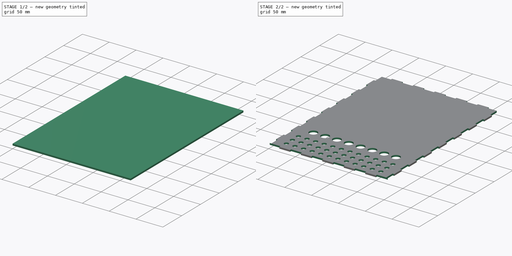
[diagram: build sequence overview — one tinted view per stage of 2, left to right]
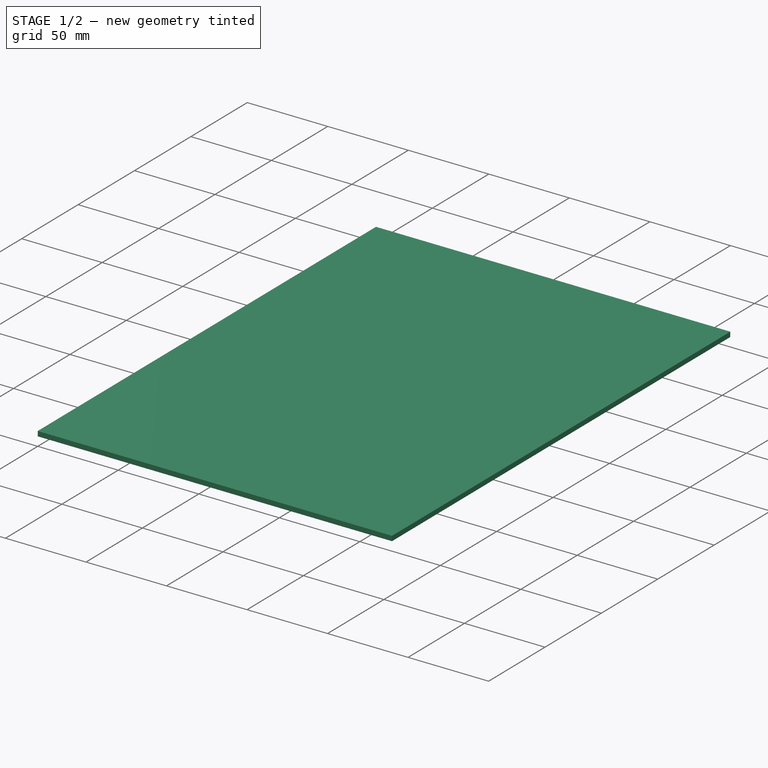
[diagram: stage 1 of 2 — iso view after this stage's code; geometry added in this stage tinted green]
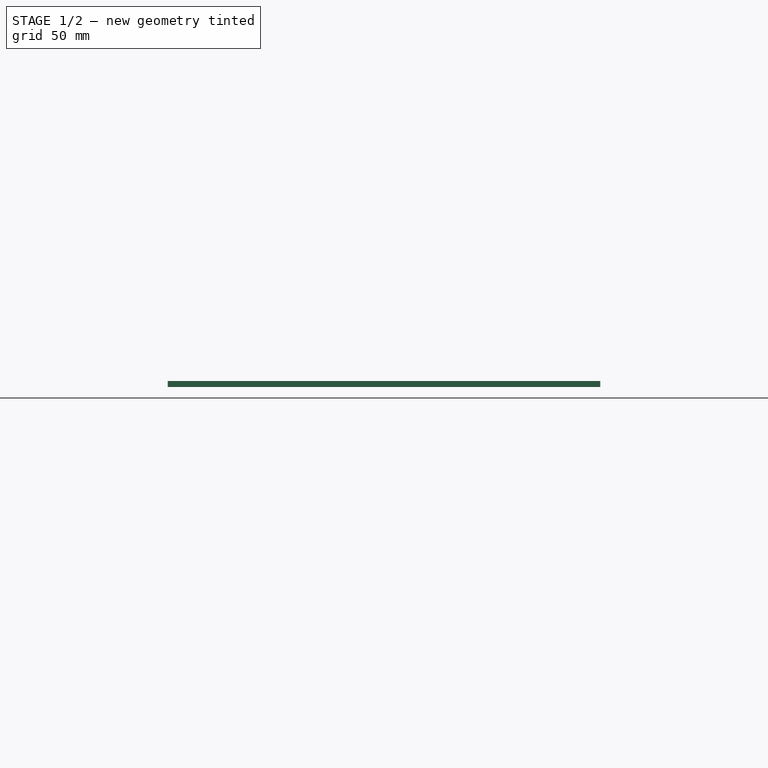
[diagram: stage 1 of 2 — front view after this stage's code; geometry added in this stage tinted green]
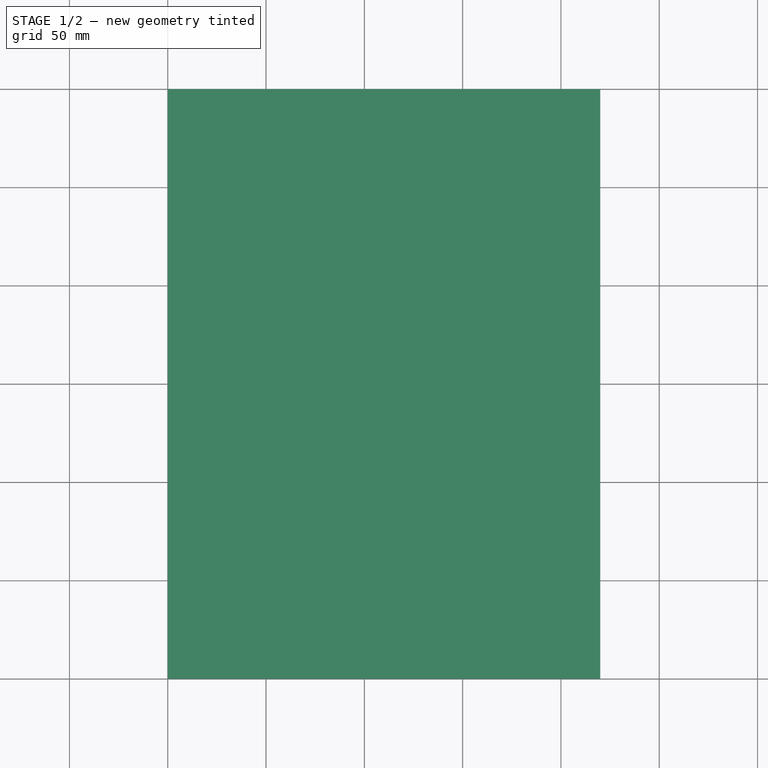
[diagram: stage 1 of 2 — top view after this stage's code; geometry added in this stage tinted green]
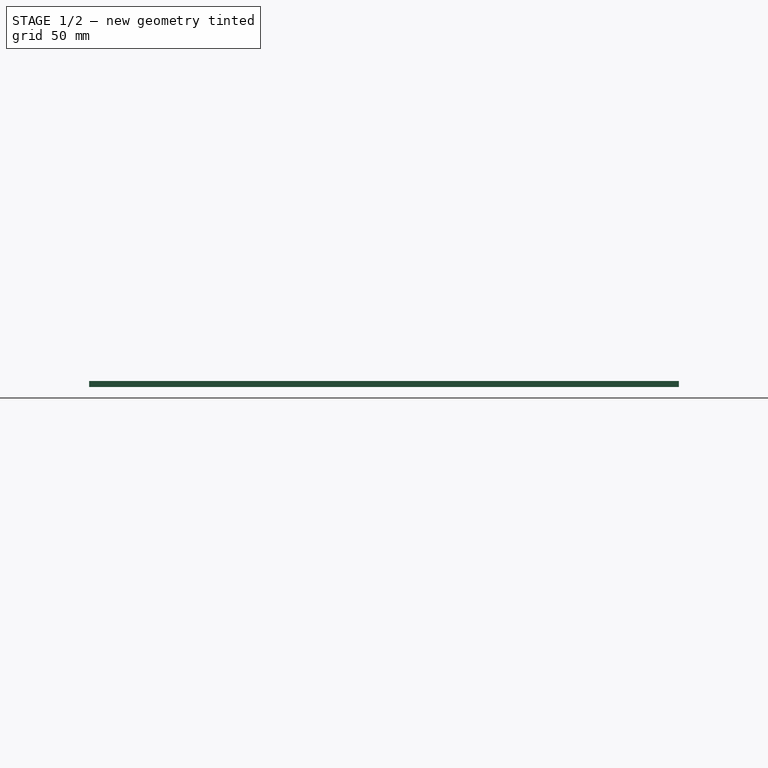
[diagram: stage 1 of 2 — right view after this stage's code; geometry added in this stage tinted green]
FCSTD DOCUMENT  (FreeCAD 0.19R24366 (Git))
Label: mdo-back
License: All rights reserved
LicenseURL: http://en.wikipedia.org/wiki/All_rights_reserved
objects: Sketcher::SketchObject×2, PartDesign::Pad×1, PartDesign::Pocket×1, PartDesign::Body×1, TechDraw::DrawSVGTemplate×1, TechDraw::DrawViewPart×1, TechDraw::DrawPage×1
note: 7 computed .brp shape members not serialized (recipe doc carries the construction recipe); baked Part::Feature solids carry a one-line shape summary decoded from their .brp

FEATURE [Sketcher::SketchObject] Sketch
  FullyConstrained = true
  MapMode = 5
  Support = -> [XY_Plane]
  sketch-geometry (4):
    g0: LineSegment StartX=0 StartY=0 StartZ=0 EndX=220 EndY=0 EndZ=0
    g1: LineSegment StartX=220 StartY=0 StartZ=0 EndX=220 EndY=300 EndZ=0
    g2: LineSegment StartX=220 StartY=300 StartZ=0 EndX=0 EndY=300 EndZ=0
    g3: LineSegment StartX=0 StartY=300 StartZ=0 EndX=0 EndY=0 EndZ=0
  constraints (11):
    c: Coincident(g0,g1)
    c: Coincident(g1,g2)
    c: Coincident(g2,g3)
    c: Coincident(g3,g0)
    c: Horizontal(g0)
    c: Horizontal(g2)
    c: Vertical(g1)
    c: Vertical(g3)
    c: Coincident(g0,g-1)
    c: DistanceY(g1,g1) = 300
    c: DistanceX(g0,g0) = 220
FEATURE [PartDesign::Pad] Pad
  Direction = (1,1,1)
  Length = 3
  Length2 = 100
  Profile = -> Sketch
  Type = 0
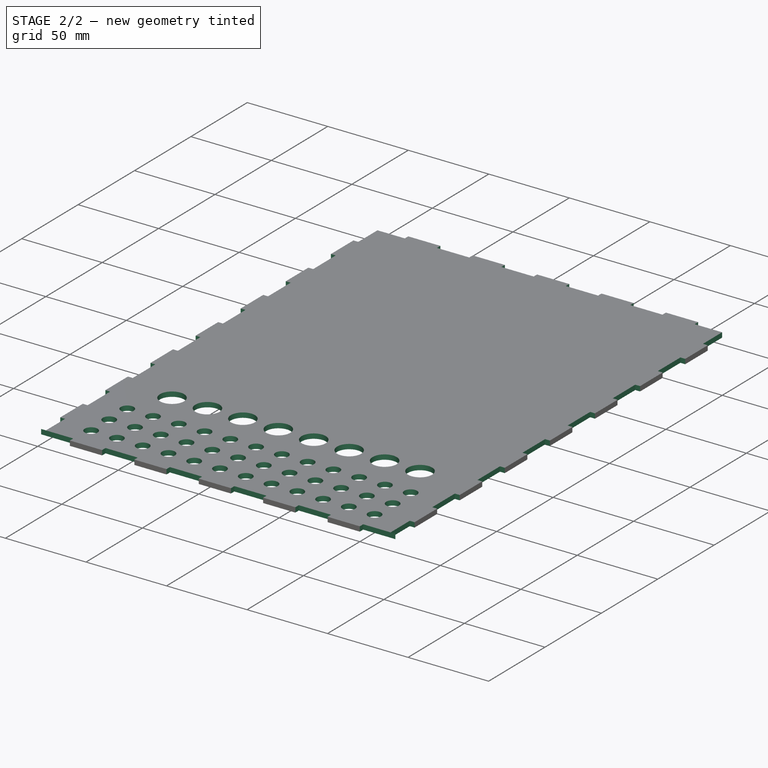
[diagram: stage 2 of 2 — iso view after this stage's code; geometry added in this stage tinted green]
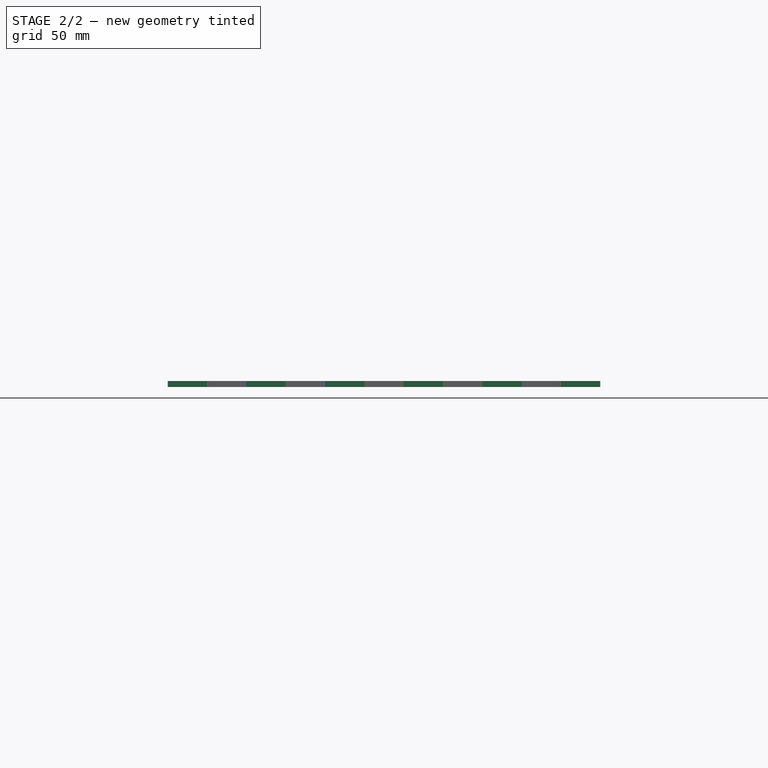
[diagram: stage 2 of 2 — front view after this stage's code; geometry added in this stage tinted green]
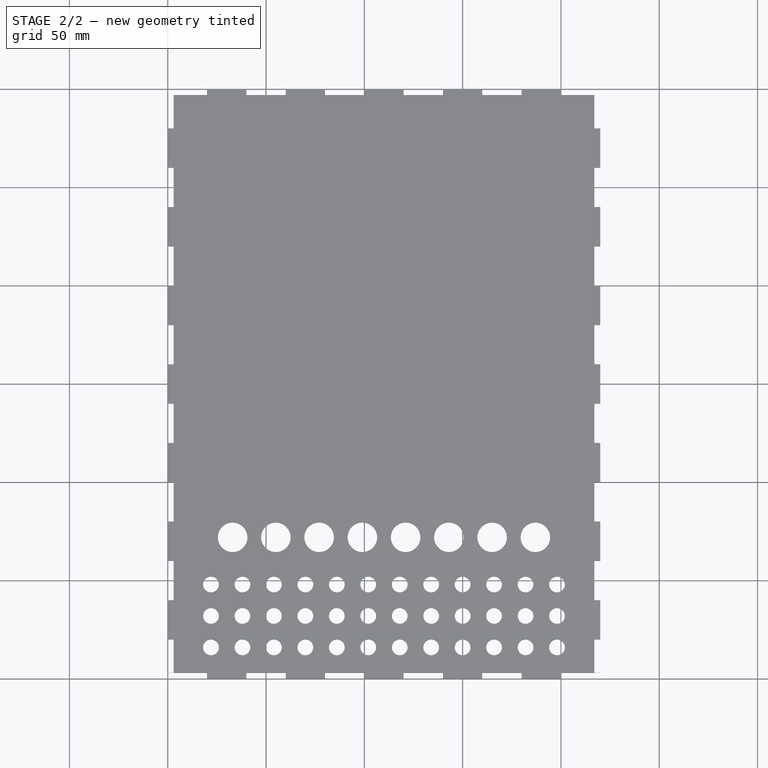
[diagram: stage 2 of 2 — top view after this stage's code; geometry added in this stage tinted green]
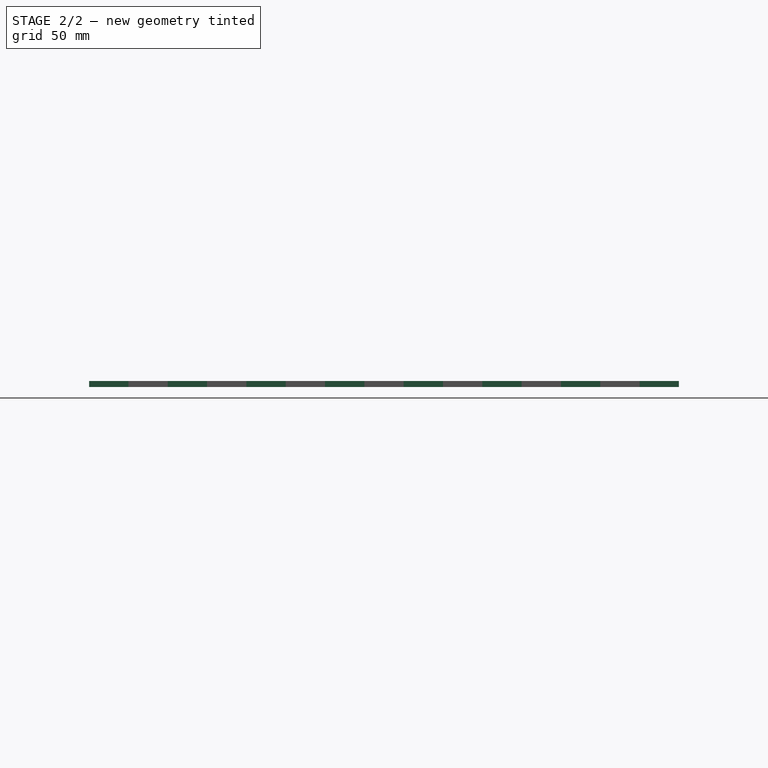
[diagram: stage 2 of 2 — right view after this stage's code; geometry added in this stage tinted green]
FEATURE [Sketcher::SketchObject] Sketch001
  FullyConstrained = true
  MapMode = 5
  Placement = pos=(0,0,3) rot=(0,0,1;0rad)
  Support = -> [Pad]
  sketch-geometry (226):
    g0: LineSegment StartX=10 StartY=54 StartZ=0 EndX=210 EndY=54 EndZ=0
    g1: LineSegment StartX=210 StartY=54 StartZ=0 EndX=210 EndY=10 EndZ=0
    g2: LineSegment StartX=210 StartY=10 StartZ=0 EndX=10 EndY=10 EndZ=0
    g3: LineSegment StartX=10 StartY=10 StartZ=0 EndX=10 EndY=54 EndZ=0
    g4: LineSegment StartX=10 StartY=79 StartZ=0 EndX=210 EndY=79 EndZ=0
    g5: LineSegment StartX=210 StartY=79 StartZ=0 EndX=210 EndY=64 EndZ=0
    g6: LineSegment StartX=210 StartY=64 StartZ=0 EndX=10 EndY=64 EndZ=0
    g7: LineSegment StartX=10 StartY=64 StartZ=0 EndX=10 EndY=79 EndZ=0
    g8: Circle CenterX=33 CenterY=72 CenterZ=0 NormalX=0 NormalY=0 NormalZ=1 AngleXU=0 Radius=7.5
    g9: Circle CenterX=55 CenterY=72 CenterZ=0 NormalX=0 NormalY=0 NormalZ=1 AngleXU=0 Radius=7.5
    g10: LineSegment StartX=33 StartY=72 StartZ=0 EndX=55 EndY=72 EndZ=0
    g11: Circle CenterX=77 CenterY=72 CenterZ=0 NormalX=0 NormalY=0 NormalZ=1 AngleXU=0 Radius=7.5
    g12: LineSegment StartX=55 StartY=72 StartZ=0 EndX=77 EndY=72 EndZ=0
    g13: Circle CenterX=99 CenterY=72 CenterZ=0 NormalX=0 NormalY=0 NormalZ=1 AngleXU=0 Radius=7.5
    g14: LineSegment StartX=77 StartY=72 StartZ=0 EndX=99 EndY=72 EndZ=0
    g15: Circle CenterX=121 CenterY=72 CenterZ=0 NormalX=0 NormalY=0 NormalZ=1 AngleXU=0 Radius=7.5
    g16: LineSegment StartX=99 StartY=72 StartZ=0 EndX=121 EndY=72 EndZ=0
    g17: Circle CenterX=143 CenterY=72 CenterZ=0 NormalX=0 NormalY=0 NormalZ=1 AngleXU=0 Radius=7.5
    g18: LineSegment StartX=121 StartY=72 StartZ=0 EndX=143 EndY=72 EndZ=0
    g19: Circle CenterX=165 CenterY=72 CenterZ=0 NormalX=0 NormalY=0 NormalZ=1 AngleXU=0 Radius=7.5
    g20: LineSegment StartX=143 StartY=72 StartZ=0 EndX=165 EndY=72 EndZ=0
    g21: Circle CenterX=187 CenterY=72 CenterZ=0 NormalX=0 NormalY=0 NormalZ=1 AngleXU=0 Radius=7.5
    g22: LineSegment StartX=165 StartY=72 StartZ=0 EndX=187 EndY=72 EndZ=0
    g23: LineSegment StartX=0 StartY=3 StartZ=0 EndX=20 EndY=3 EndZ=0
    g24: LineSegment StartX=20 StartY=3 StartZ=0 EndX=20 EndY=0 EndZ=0
    g25: LineSegment StartX=20 StartY=0 StartZ=0 EndX=0 EndY=0 EndZ=0
    g26: LineSegment StartX=0 StartY=0 StartZ=0 EndX=0 EndY=3 EndZ=0
    g27: LineSegment StartX=40 StartY=3 StartZ=0 EndX=60 EndY=3 EndZ=0
    g28: LineSegment StartX=60 StartY=3 StartZ=0 EndX=60 EndY=-4.11355e-11 EndZ=0
    g29: LineSegment StartX=60 StartY=-4.11355e-11 StartZ=0 EndX=40 EndY=-4.11355e-11 EndZ=0
    g30: LineSegment StartX=40 StartY=-4.11355e-11 StartZ=0 EndX=40 EndY=3 EndZ=0
    g31: LineSegment StartX=0 StartY=3 StartZ=0 EndX=40 EndY=3 EndZ=0
    g32: LineSegment StartX=80 StartY=3 StartZ=0 EndX=100 EndY=3 EndZ=0
    g33: LineSegment StartX=100 StartY=3 StartZ=0 EndX=100 EndY=-2.48777e-10 EndZ=0
    g34: LineSegment StartX=100 StartY=-2.48777e-10 StartZ=0 EndX=80 EndY=-2.48777e-10 EndZ=0
    g35: LineSegment StartX=80 StartY=-2.48777e-10 StartZ=0 EndX=80 EndY=3 EndZ=0
    g36: LineSegment StartX=40 StartY=3 StartZ=0 EndX=80 EndY=3 EndZ=0
    g37: LineSegment StartX=120 StartY=3 StartZ=0 EndX=140 EndY=3 EndZ=0
    g38: LineSegment StartX=140 StartY=3 StartZ=0 EndX=140 EndY=-2.49123e-10 EndZ=0
    g39: LineSegment StartX=140 StartY=-2.49123e-10 StartZ=0 EndX=120 EndY=-2.49123e-10 EndZ=0
    g40: LineSegment StartX=120 StartY=-2.49123e-10 StartZ=0 EndX=120 EndY=3 EndZ=0
    g41: LineSegment StartX=80 StartY=3 StartZ=0 EndX=120 EndY=3 EndZ=0
    g42: LineSegment StartX=160 StartY=3 StartZ=0 EndX=180 EndY=3 EndZ=0
    g43: LineSegment StartX=180 StartY=3 StartZ=0 EndX=180 EndY=-2.4917e-10 EndZ=0
    g44: LineSegment StartX=180 StartY=-2.4917e-10 StartZ=0 EndX=160 EndY=-2.4917e-10 EndZ=0
    g45: LineSegment StartX=160 StartY=-2.4917e-10 StartZ=0 EndX=160 EndY=3 EndZ=0
    g46: LineSegment StartX=120 StartY=3 StartZ=0 EndX=160 EndY=3 EndZ=0
    g47: LineSegment StartX=200 StartY=3 StartZ=0 EndX=220 EndY=3 EndZ=0
    g48: LineSegment StartX=220 StartY=3 StartZ=0 EndX=220 EndY=-2.78876e-10 EndZ=0
    g49: LineSegment StartX=220 StartY=-2.78876e-10 StartZ=0 EndX=200 EndY=-2.78876e-10 EndZ=0
    g50: LineSegment StartX=200 StartY=-2.78876e-10 StartZ=0 EndX=200 EndY=3 EndZ=0
    g51: LineSegment StartX=160 StartY=3 StartZ=0 EndX=200 EndY=3 EndZ=0
    g52: LineSegment StartX=0 StartY=300 StartZ=0 EndX=20 EndY=300 EndZ=0
    g53: LineSegment StartX=20 StartY=300 StartZ=0 EndX=20 EndY=297 EndZ=0
    g54: LineSegment StartX=20 StartY=297 StartZ=0 EndX=0 EndY=297 EndZ=0
    g55: LineSegment StartX=0 StartY=297 StartZ=0 EndX=0 EndY=300 EndZ=0
    g56: LineSegment StartX=40 StartY=300 StartZ=0 EndX=60 EndY=300 EndZ=0
    g57: LineSegment StartX=60 StartY=300 StartZ=0 EndX=60 EndY=297 EndZ=0
    g58: LineSegment StartX=60 StartY=297 StartZ=0 EndX=40 EndY=297 EndZ=0
    g59: LineSegment StartX=40 StartY=297 StartZ=0 EndX=40 EndY=300 EndZ=0
    g60: LineSegment StartX=0 StartY=300 StartZ=0 EndX=40 EndY=300 EndZ=0
    g61: LineSegment StartX=80 StartY=300 StartZ=0 EndX=100 EndY=300 EndZ=0
    g62: LineSegment StartX=100 StartY=300 StartZ=0 EndX=100 EndY=297 EndZ=0
    g63: LineSegment StartX=100 StartY=297 StartZ=0 EndX=80 EndY=297 EndZ=0
    g64: LineSegment StartX=80 StartY=297 StartZ=0 EndX=80 EndY=300 EndZ=0
    g65: LineSegment StartX=40 StartY=300 StartZ=0 EndX=80 EndY=300 EndZ=0
    g66: LineSegment StartX=120 StartY=300 StartZ=0 EndX=140 EndY=300 EndZ=0
    g67: LineSegment StartX=140 StartY=300 StartZ=0 EndX=140 EndY=297 EndZ=0
    g68: LineSegment StartX=140 StartY=297 StartZ=0 EndX=120 EndY=297 EndZ=0
    g69: LineSegment StartX=120 StartY=297 StartZ=0 EndX=120 EndY=300 EndZ=0
    g70: LineSegment StartX=80 StartY=300 StartZ=0 EndX=120 EndY=300 EndZ=0
    g71: LineSegment StartX=160 StartY=300 StartZ=0 EndX=180 EndY=300 EndZ=0
    g72: LineSegment StartX=180 StartY=300 StartZ=0 EndX=180 EndY=297 EndZ=0
    g73: LineSegment StartX=180 StartY=297 StartZ=0 EndX=160 EndY=297 EndZ=0
    g74: LineSegment StartX=160 StartY=297 StartZ=0 EndX=160 EndY=300 EndZ=0
    g75: LineSegment StartX=120 StartY=300 StartZ=0 EndX=160 EndY=300 EndZ=0
    g76: LineSegment StartX=200 StartY=300 StartZ=0 EndX=220 EndY=300 EndZ=0
    g77: LineSegment StartX=220 StartY=300 StartZ=0 EndX=220 EndY=297 EndZ=0
    g78: LineSegment StartX=220 StartY=297 StartZ=0 EndX=200 EndY=297 EndZ=0
    g79: LineSegment StartX=200 StartY=297 StartZ=0 EndX=200 EndY=300 EndZ=0
    g80: LineSegment StartX=160 StartY=300 StartZ=0 EndX=200 EndY=300 EndZ=0
    g81: LineSegment StartX=0 StartY=60 StartZ=0 EndX=3 EndY=60 EndZ=0
    g82: LineSegment StartX=3 StartY=60 StartZ=0 EndX=3 EndY=40 EndZ=0
    g83: LineSegment StartX=3 StartY=40 StartZ=0 EndX=0 EndY=40 EndZ=0
    g84: LineSegment StartX=0 StartY=40 StartZ=0 EndX=0 EndY=60 EndZ=0
    g85: LineSegment StartX=2.7e-15 StartY=100 StartZ=0 EndX=3 EndY=100 EndZ=0
    g86: LineSegment StartX=3 StartY=100 StartZ=0 EndX=3 EndY=80 EndZ=0
    g87: LineSegment StartX=3 StartY=80 StartZ=0 EndX=2.7e-15 EndY=80 EndZ=0
    g88: LineSegment StartX=2.7e-15 StartY=80 StartZ=0 EndX=2.7e-15 EndY=100 EndZ=0
    g89: LineSegment StartX=0 StartY=60 StartZ=0 EndX=2.7e-15 EndY=100 EndZ=0
    g90: LineSegment StartX=4.9e-15 StartY=140 StartZ=0 EndX=3 EndY=140 EndZ=0
    g91: LineSegment StartX=3 StartY=140 StartZ=0 EndX=3 EndY=120 EndZ=0
    g92: LineSegment StartX=3 StartY=120 StartZ=0 EndX=4.9e-15 EndY=120 EndZ=0
    g93: LineSegment StartX=4.9e-15 StartY=120 StartZ=0 EndX=4.9e-15 EndY=140 EndZ=0
    g94: LineSegment StartX=2.7e-15 StartY=100 StartZ=0 EndX=4.9e-15 EndY=140 EndZ=0
    g95: LineSegment StartX=7.5e-15 StartY=180 StartZ=0 EndX=3 EndY=180 EndZ=0
    g96: LineSegment StartX=3 StartY=180 StartZ=0 EndX=3 EndY=160 EndZ=0
    g97: LineSegment StartX=3 StartY=160 StartZ=0 EndX=7.5e-15 EndY=160 EndZ=0
    g98: LineSegment StartX=7.5e-15 StartY=160 StartZ=0 EndX=7.5e-15 EndY=180 EndZ=0
    g99: LineSegment StartX=4.9e-15 StartY=140 StartZ=0 EndX=7.5e-15 EndY=180 EndZ=0
    g100: LineSegment StartX=9.8e-15 StartY=220 StartZ=0 EndX=3 EndY=220 EndZ=0
    g101: LineSegment StartX=3 StartY=220 StartZ=0 EndX=3 EndY=200 EndZ=0
    g102: LineSegment StartX=3 StartY=200 StartZ=0 EndX=9.8e-15 EndY=200 EndZ=0
    g103: LineSegment StartX=9.8e-15 StartY=200 StartZ=0 EndX=9.8e-15 EndY=220 EndZ=0
    g104: LineSegment StartX=7.5e-15 StartY=180 StartZ=0 EndX=9.8e-15 EndY=220 EndZ=0
    g105: LineSegment StartX=1.24e-14 StartY=260 StartZ=0 EndX=3 EndY=260 EndZ=0
    g106: LineSegment StartX=3 StartY=260 StartZ=0 EndX=3 EndY=240 EndZ=0
    g107: LineSegment StartX=3 StartY=240 StartZ=0 EndX=1.24e-14 EndY=240 EndZ=0
    g108: LineSegment StartX=1.24e-14 StartY=240 StartZ=0 EndX=1.24e-14 EndY=260 EndZ=0
    g109: LineSegment StartX=9.8e-15 StartY=220 StartZ=0 EndX=1.24e-14 EndY=260 EndZ=0
    g110: LineSegment StartX=217 StartY=60 StartZ=0 EndX=220 EndY=60 EndZ=0
    g111: LineSegment StartX=220 StartY=60 StartZ=0 EndX=220 EndY=40 EndZ=0
    g112: LineSegment StartX=220 StartY=40 StartZ=0 EndX=217 EndY=40 EndZ=0
    g113: LineSegment StartX=217 StartY=40 StartZ=0 EndX=217 EndY=60 EndZ=0
    g114: LineSegment StartX=217 StartY=100 StartZ=0 EndX=220 EndY=100 EndZ=0
    g115: LineSegment StartX=220 StartY=100 StartZ=0 EndX=220 EndY=80 EndZ=0
    g116: LineSegment StartX=220 StartY=80 StartZ=0 EndX=217 EndY=80 EndZ=0
    g117: LineSegment StartX=217 StartY=80 StartZ=0 EndX=217 EndY=100 EndZ=0
    g118: LineSegment StartX=217 StartY=60 StartZ=0 EndX=217 EndY=100 EndZ=0
    g119: LineSegment StartX=217 StartY=140 StartZ=0 EndX=220 EndY=140 EndZ=0
    g120: LineSegment StartX=220 StartY=140 StartZ=0 EndX=220 EndY=120 EndZ=0
    g121: LineSegment StartX=220 StartY=120 StartZ=0 EndX=217 EndY=120 EndZ=0
    g122: LineSegment StartX=217 StartY=120 StartZ=0 EndX=217 EndY=140 EndZ=0
    g123: LineSegment StartX=217 StartY=100 StartZ=0 EndX=217 EndY=140 EndZ=0
    g124: LineSegment StartX=217 StartY=180 StartZ=0 EndX=220 EndY=180 EndZ=0
    g125: LineSegment StartX=220 StartY=180 StartZ=0 EndX=220 EndY=160 EndZ=0
    g126: LineSegment StartX=220 StartY=160 StartZ=0 EndX=217 EndY=160 EndZ=0
    g127: LineSegment StartX=217 StartY=160 StartZ=0 EndX=217 EndY=180 EndZ=0
    g128: LineSegment StartX=217 StartY=140 StartZ=0 EndX=217 EndY=180 EndZ=0
    g129: LineSegment StartX=217 StartY=220 StartZ=0 EndX=220 EndY=220 EndZ=0
    g130: LineSegment StartX=220 StartY=220 StartZ=0 EndX=220 EndY=200 EndZ=0
    g131: LineSegment StartX=220 StartY=200 StartZ=0 EndX=217 EndY=200 EndZ=0
    g132: LineSegment StartX=217 StartY=200 StartZ=0 EndX=217 EndY=220 EndZ=0
    g133: LineSegment StartX=217 StartY=180 StartZ=0 EndX=217 EndY=220 EndZ=0
    g134: LineSegment StartX=217 StartY=260 StartZ=0 EndX=220 EndY=260 EndZ=0
    g135: LineSegment StartX=220 StartY=260 StartZ=0 EndX=220 EndY=240 EndZ=0
    g136: LineSegment StartX=220 StartY=240 StartZ=0 EndX=217 EndY=240 EndZ=0
    g137: LineSegment StartX=217 StartY=240 StartZ=0 EndX=217 EndY=260 EndZ=0
    g138: LineSegment StartX=217 StartY=220 StartZ=0 EndX=217 EndY=260 EndZ=0
    g139: LineSegment StartX=0 StartY=20.01 StartZ=0 EndX=3 EndY=20.01 EndZ=0
    g140: LineSegment StartX=3 StartY=20.01 StartZ=0 EndX=3 EndY=3.01 EndZ=0
    g141: LineSegment StartX=3 StartY=3.01 StartZ=0 EndX=0 EndY=3.01 EndZ=0
    g142: LineSegment StartX=0 StartY=3.01 StartZ=0 EndX=0 EndY=20.01 EndZ=0
    g143: LineSegment StartX=0 StartY=297 StartZ=0 EndX=3 EndY=297 EndZ=0
    g144: LineSegment StartX=3 StartY=297 StartZ=0 EndX=3 EndY=280 EndZ=0
    g145: LineSegment StartX=3 StartY=280 StartZ=0 EndX=0 EndY=280 EndZ=0
    g146: LineSegment StartX=0 StartY=280 StartZ=0 EndX=0 EndY=297 EndZ=0
    g147: LineSegment StartX=217 StartY=297 StartZ=0 EndX=220 EndY=297 EndZ=0
    g148: LineSegment StartX=220 StartY=297 StartZ=0 EndX=220 EndY=280 EndZ=0
    g149: LineSegment StartX=220 StartY=280 StartZ=0 EndX=217 EndY=280 EndZ=0
    g150: LineSegment StartX=217 StartY=280 StartZ=0 EndX=217 EndY=297 EndZ=0
    g151: LineSegment StartX=217 StartY=20.01 StartZ=0 EndX=220 EndY=20.01 EndZ=0
    g152: LineSegment StartX=220 StartY=20.01 StartZ=0 EndX=220 EndY=3.01 EndZ=0
    g153: LineSegment StartX=220 StartY=3.01 StartZ=0 EndX=217 EndY=3.01 EndZ=0
    g154: LineSegment StartX=217 StartY=3.01 StartZ=0 EndX=217 EndY=20.01 EndZ=0
    g155: Circle CenterX=22 CenterY=48 CenterZ=0 NormalX=0 NormalY=0 NormalZ=1 AngleXU=0 Radius=4
    g156: Circle CenterX=38 CenterY=48 CenterZ=0 NormalX=0 NormalY=0 NormalZ=1 AngleXU=0 Radius=4
    g157: LineSegment StartX=22 StartY=48 StartZ=0 EndX=38 EndY=48 EndZ=0
    g158: Circle CenterX=54 CenterY=48 CenterZ=0 NormalX=0 NormalY=0 NormalZ=1 AngleXU=0 Radius=4
    g159: LineSegment StartX=38 StartY=48 StartZ=0 EndX=54 EndY=48 EndZ=0
    g160: Circle CenterX=70 CenterY=48 CenterZ=0 NormalX=0 NormalY=0 NormalZ=1 AngleXU=0 Radius=4
    g161: LineSegment StartX=54 StartY=48 StartZ=0 EndX=70 EndY=48 EndZ=0
    g162: Circle CenterX=86 CenterY=48 CenterZ=0 NormalX=0 NormalY=0 NormalZ=1 AngleXU=0 Radius=4
    g163: LineSegment StartX=70 StartY=48 StartZ=0 EndX=86 EndY=48 EndZ=0
    g164: Circle CenterX=102 CenterY=48 CenterZ=0 NormalX=0 NormalY=0 NormalZ=1 AngleXU=0 Radius=4
    g165: LineSegment StartX=86 StartY=48 StartZ=0 EndX=102 EndY=48 EndZ=0
    g166: Circle CenterX=118 CenterY=48 CenterZ=0 NormalX=0 NormalY=0 NormalZ=1 AngleXU=0 Radius=4
    g167: LineSegment StartX=102 StartY=48 StartZ=0 EndX=118 EndY=48 EndZ=0
    g168: Circle CenterX=134 CenterY=48 CenterZ=0 NormalX=0 NormalY=0 NormalZ=1 AngleXU=0 Radius=4
    g169: LineSegment StartX=118 StartY=48 StartZ=0 EndX=134 EndY=48 EndZ=0
    g170: Circle CenterX=150 CenterY=48 CenterZ=0 NormalX=0 NormalY=0 NormalZ=1 AngleXU=0 Radius=4
    g171: LineSegment StartX=134 StartY=48 StartZ=0 EndX=150 EndY=48 EndZ=0
    g172: Circle CenterX=166 CenterY=48 CenterZ=0 NormalX=0 NormalY=0 NormalZ=1 AngleXU=0 Radius=4
    g173: LineSegment StartX=150 StartY=48 StartZ=0 EndX=166 EndY=48 EndZ=0
    g174: Circle CenterX=182 CenterY=48 CenterZ=0 NormalX=0 NormalY=0 NormalZ=1 AngleXU=0 Radius=4
    g175: LineSegment StartX=166 StartY=48 StartZ=0 EndX=182 EndY=48 EndZ=0
    g176: Circle CenterX=198 CenterY=48 CenterZ=0 NormalX=0 NormalY=0 NormalZ=1 AngleXU=0 Radius=4
    g177: LineSegment StartX=182 StartY=48 StartZ=0 EndX=198 EndY=48 EndZ=0
    g178: Circle CenterX=22 CenterY=32 CenterZ=0 NormalX=0 NormalY=0 NormalZ=1 AngleXU=0 Radius=4
    g179: LineSegment StartX=22 StartY=48 StartZ=0 EndX=22 EndY=32 EndZ=0
    g180: Circle CenterX=38 CenterY=32 CenterZ=0 NormalX=0 NormalY=0 NormalZ=1 AngleXU=0 Radius=4
    g181: LineSegment StartX=22 StartY=32 StartZ=0 EndX=38 EndY=32 EndZ=0
    g182: Circle CenterX=54 CenterY=32 CenterZ=0 NormalX=0 NormalY=0 NormalZ=1 AngleXU=0 Radius=4
    g183: LineSegment StartX=38 StartY=32 StartZ=0 EndX=54 EndY=32 EndZ=0
    g184: Circle CenterX=70 CenterY=32 CenterZ=0 NormalX=0 NormalY=0 NormalZ=1 AngleXU=0 Radius=4
    g185: LineSegment StartX=54 StartY=32 StartZ=0 EndX=70 EndY=32 EndZ=0
    g186: Circle CenterX=86 CenterY=32 CenterZ=0 NormalX=0 NormalY=0 NormalZ=1 AngleXU=0 Radius=4
    g187: LineSegment StartX=70 StartY=32 StartZ=0 EndX=86 EndY=32 EndZ=0
    g188: Circle CenterX=102 CenterY=32 CenterZ=0 NormalX=0 NormalY=0 NormalZ=1 AngleXU=0 Radius=4
    g189: LineSegment StartX=86 StartY=32 StartZ=0 EndX=102 EndY=32 EndZ=0
    g190: Circle CenterX=118 CenterY=32 CenterZ=0 NormalX=0 NormalY=0 NormalZ=1 AngleXU=0 Radius=4
    g191: LineSegment StartX=102 StartY=32 StartZ=0 EndX=118 EndY=32 EndZ=0
    g192: Circle CenterX=134 CenterY=32 CenterZ=0 NormalX=0 NormalY=0 NormalZ=1 AngleXU=0 Radius=4
    g193: LineSegment StartX=118 StartY=32 StartZ=0 EndX=134 EndY=32 EndZ=0
    g194: Circle CenterX=150 CenterY=32 CenterZ=0 NormalX=0 NormalY=0 NormalZ=1 AngleXU=0 Radius=4
    g195: LineSegment StartX=134 StartY=32 StartZ=0 EndX=150 EndY=32 EndZ=0
    g196: Circle CenterX=166 CenterY=32 CenterZ=0 NormalX=0 NormalY=0 NormalZ=1 AngleXU=0 Radius=4
    g197: LineSegment StartX=150 StartY=32 StartZ=0 EndX=166 EndY=32 EndZ=0
    g198: Circle CenterX=182 CenterY=32 CenterZ=0 NormalX=0 NormalY=0 NormalZ=1 AngleXU=0 Radius=4
    g199: LineSegment StartX=166 StartY=32 StartZ=0 EndX=182 EndY=32 EndZ=0
    g200: Circle CenterX=198 CenterY=32 CenterZ=0 NormalX=0 NormalY=0 NormalZ=1 AngleXU=0 Radius=4
    g201: LineSegment StartX=182 StartY=32 StartZ=0 EndX=198 EndY=32 EndZ=0
    g202: Circle CenterX=22 CenterY=16 CenterZ=0 NormalX=0 NormalY=0 NormalZ=1 AngleXU=0 Radius=4
    g203: LineSegment StartX=22 StartY=32 StartZ=0 EndX=22 EndY=16 EndZ=0
    g204: Circle CenterX=38 CenterY=16 CenterZ=0 NormalX=0 NormalY=0 NormalZ=1 AngleXU=0 Radius=4
    g205: LineSegment StartX=22 StartY=16 StartZ=0 EndX=38 EndY=16 EndZ=0
    g206: Circle CenterX=54 CenterY=16 CenterZ=0 NormalX=0 NormalY=0 NormalZ=1 AngleXU=0 Radius=4
    g207: LineSegment StartX=38 StartY=16 StartZ=0 EndX=54 EndY=16 EndZ=0
    g208: Circle CenterX=70 CenterY=16 CenterZ=0 NormalX=0 NormalY=0 NormalZ=1 AngleXU=0 Radius=4
    g209: LineSegment StartX=54 StartY=16 StartZ=0 EndX=70 EndY=16 EndZ=0
    g210: Circle CenterX=86 CenterY=16 CenterZ=0 NormalX=0 NormalY=0 NormalZ=1 AngleXU=0 Radius=4
    g211: LineSegment StartX=70 StartY=16 StartZ=0 EndX=86 EndY=16 EndZ=0
    g212: Circle CenterX=102 CenterY=16 CenterZ=0 NormalX=0 NormalY=0 NormalZ=1 AngleXU=0 Radius=4
    g213: LineSegment StartX=86 StartY=16 StartZ=0 EndX=102 EndY=16 EndZ=0
    g214: Circle CenterX=118 CenterY=16 CenterZ=0 NormalX=0 NormalY=0 NormalZ=1 AngleXU=0 Radius=4
    g215: LineSegment StartX=102 StartY=16 StartZ=0 EndX=118 EndY=16 EndZ=0
    g216: Circle CenterX=134 CenterY=16 CenterZ=0 NormalX=0 NormalY=0 NormalZ=1 AngleXU=0 Radius=4
    g217: LineSegment StartX=118 StartY=16 StartZ=0 EndX=134 EndY=16 EndZ=0
    g218: Circle CenterX=150 CenterY=16 CenterZ=0 NormalX=0 NormalY=0 NormalZ=1 AngleXU=0 Radius=4
    g219: LineSegment StartX=134 StartY=16 StartZ=0 EndX=150 EndY=16 EndZ=0
    g220: Circle CenterX=166 CenterY=16 CenterZ=0 NormalX=0 NormalY=0 NormalZ=1 AngleXU=0 Radius=4
    g221: LineSegment StartX=150 StartY=16 StartZ=0 EndX=166 EndY=16 EndZ=0
    g222: Circle CenterX=182 CenterY=16 CenterZ=0 NormalX=0 NormalY=0 NormalZ=1 AngleXU=0 Radius=4
    g223: LineSegment StartX=166 StartY=16 StartZ=0 EndX=182 EndY=16 EndZ=0
    g224: Circle CenterX=198 CenterY=16 CenterZ=0 NormalX=0 NormalY=0 NormalZ=1 AngleXU=0 Radius=4
    g225: LineSegment StartX=182 StartY=16 StartZ=0 EndX=198 EndY=16 EndZ=0
  constraints (616):
    c: Coincident(g0,g1)
    c: Coincident(g1,g2)
    c: Coincident(g2,g3)
    c: Coincident(g3,g0)
    c: Horizontal(g0)
    c: Horizontal(g2)
    c: Vertical(g1)
    c: Vertical(g3)
    c: DistanceX(g0,g0) = 200
    c: DistanceX(g-1,g2) = 10
    c: DistanceY(g1,g1) = 44
    c: DistanceY(g-1,g2) = 10
    c: Coincident(g4,g5)
    c: Coincident(g5,g6)
    c: Coincident(g6,g7)
    c: Coincident(g7,g4)
    c: Horizontal(g4)
    c: Horizontal(g6)
    c: Vertical(g5)
    c: Vertical(g7)
    c: Equal(g0,g4) = 200
    c: DistanceY(g0,g6) = 10
    c: DistanceY(g5,g5) = 15
    c: Diameter(g8) = 15
    c: DistanceX(g6,g8) = 23
    c: DistanceX(g2,g6) = 0
    c: DistanceY(g6,g8) = 8
    c: Equal(g8,g9) = 10
    c: Coincident(g8,g10)
    c: Coincident(g9,g10)
    c: Distance(g10) = 22
    c: Angle(g10) = 0
    c: Equal(g8,g11) = 10
    c: Coincident(g9,g12)
    c: Coincident(g11,g12)
    c: Equal(g10,g12)
    c: Parallel(g12,g10)
    c: Equal(g8,g13) = 10
    c: Coincident(g11,g14)
    c: Coincident(g13,g14)
    c: Equal(g10,g14)
    c: Parallel(g14,g10)
    c: Equal(g8,g15) = 10
    c: Coincident(g13,g16)
    c: Coincident(g15,g16)
    c: Equal(g10,g16)
    c: Parallel(g16,g10)
    c: Equal(g8,g17) = 10
    c: Coincident(g15,g18)
    c: Coincident(g17,g18)
    c: Equal(g10,g18)
    c: Parallel(g18,g10)
    c: Equal(g8,g19) = 10
    c: Coincident(g17,g20)
    c: Coincident(g19,g20)
    c: Equal(g10,g20)
    c: Parallel(g20,g10)
    c: Equal(g8,g21) = 10
    c: Coincident(g19,g22)
    c: Coincident(g21,g22)
    c: Equal(g10,g22)
    c: Parallel(g22,g10)
    c: Coincident(g23,g24)
    c: Coincident(g24,g25)
    c: Coincident(g25,g26)
    c: Coincident(g26,g23)
    c: Horizontal(g23)
    c: Horizontal(g25)
    c: Vertical(g24)
    c: Vertical(g26)
    c: DistanceX(g23,g23) = 20
    c: DistanceY(g24,g24) = 3
    c: DistanceX(g-1,g25) = 0
    c: DistanceY(g-1,g25) = 0
    c: Coincident(g27,g28)
    c: Coincident(g28,g29)
    c: Coincident(g29,g30)
    c: Coincident(g30,g27)
    c: Horizontal(g27)
    c: Horizontal(g29)
    c: Vertical(g28)
    c: Vertical(g30)
    c: Equal(g23,g27) = 20
    c: Equal(g24,g28) = 3
    c: Coincident(g23,g31)
    c: Coincident(g27,g31)
    c: Distance(g31) = 40
    c: Angle(g31) = 0
    c: Coincident(g32,g33)
    c: Coincident(g33,g34)
    c: Coincident(g34,g35)
    c: Coincident(g35,g32)
    c: Horizontal(g32)
    c: Horizontal(g34)
    c: Vertical(g33)
    c: Vertical(g35)
    c: Equal(g23,g32) = 20
    c: Equal(g24,g33) = 3
    c: Coincident(g27,g36)
    c: Coincident(g32,g36)
    c: Equal(g31,g36)
    c: Parallel(g36,g31)
    c: Coincident(g37,g38)
    c: Coincident(g38,g39)
    c: Coincident(g39,g40)
    c: Coincident(g40,g37)
    c: Horizontal(g37)
    c: Horizontal(g39)
    c: Vertical(g38)
    c: Vertical(g40)
    c: Equal(g23,g37) = 20
    c: Equal(g24,g38) = 3
    c: Coincident(g32,g41)
    c: Coincident(g37,g41)
    c: Equal(g31,g41)
    c: Parallel(g41,g31)
    c: Coincident(g42,g43)
    c: Coincident(g43,g44)
    c: Coincident(g44,g45)
    c: Coincident(g45,g42)
    c: Horizontal(g42)
    c: Horizontal(g44)
    c: Vertical(g43)
    c: Vertical(g45)
    c: Equal(g23,g42) = 20
    c: Equal(g24,g43) = 3
    c: Coincident(g37,g46)
    c: Coincident(g42,g46)
    c: Equal(g31,g46)
    c: Parallel(g46,g31)
    c: Coincident(g47,g48)
    c: Coincident(g48,g49)
    c: Coincident(g49,g50)
    c: Coincident(g50,g47)
    c: Horizontal(g47)
    c: Horizontal(g49)
    c: Vertical(g48)
    c: Vertical(g50)
    c: Equal(g23,g47) = 20
    c: Equal(g24,g48) = 3
    c: Coincident(g42,g51)
    c: Coincident(g47,g51)
    c: Equal(g31,g51)
    c: Parallel(g51,g31)
    c: Coincident(g52,g53)
    c: Coincident(g53,g54)
    c: Coincident(g54,g55)
    c: Coincident(g55,g52)
    c: Horizontal(g52)
    c: Horizontal(g54)
    c: Vertical(g53)
    c: Vertical(g55)
    c: Equal(g23,g52) = 20
    c: Equal(g24,g53) = 3
    c: Coincident(g56,g57)
    c: Coincident(g57,g58)
    c: Coincident(g58,g59)
    c: Coincident(g59,g56)
    c: Horizontal(g56)
    c: Horizontal(g58)
    c: Vertical(g57)
    c: Vertical(g59)
    c: Equal(g52,g56) = 20
    c: Equal(g53,g57) = 3
    c: Coincident(g52,g60)
    c: Coincident(g56,g60)
    c: Equal(g31,g60) = 40
    c: Parallel(g31,g60)
    c: Coincident(g61,g62)
    c: Coincident(g62,g63)
    c: Coincident(g63,g64)
    c: Coincident(g64,g61)
    c: Horizontal(g61)
    c: Horizontal(g63)
    c: Vertical(g62)
    c: Vertical(g64)
    c: Equal(g52,g61) = 20
    c: Equal(g53,g62) = 3
    c: Coincident(g56,g65)
    c: Coincident(g61,g65)
    c: Equal(g60,g65)
    c: Parallel(g65,g60)
    c: Coincident(g66,g67)
    c: Coincident(g67,g68)
    c: Coincident(g68,g69)
    c: Coincident(g69,g66)
    c: Horizontal(g66)
    c: Horizontal(g68)
    c: Vertical(g67)
    c: Vertical(g69)
    c: Equal(g52,g66) = 20
    c: Equal(g53,g67) = 3
    c: Coincident(g61,g70)
    c: Coincident(g66,g70)
    c: Equal(g60,g70)
    c: Parallel(g70,g60)
    c: Coincident(g71,g72)
    c: Coincident(g72,g73)
    c: Coincident(g73,g74)
    c: Coincident(g74,g71)
    c: Horizontal(g71)
    c: Horizontal(g73)
    c: Vertical(g72)
    c: Vertical(g74)
    c: Equal(g52,g71) = 20
    c: Equal(g53,g72) = 3
    c: Coincident(g66,g75)
    c: Coincident(g71,g75)
    c: Equal(g60,g75)
    c: Parallel(g75,g60)
    c: Coincident(g76,g77)
    c: Coincident(g77,g78)
    c: Coincident(g78,g79)
    c: Coincident(g79,g76)
    c: Horizontal(g76)
    c: Horizontal(g78)
    c: Vertical(g77)
    c: Vertical(g79)
    c: Equal(g52,g76) = 20
    c: Equal(g53,g77) = 3
    c: Coincident(g71,g80)
    c: Coincident(g76,g80)
    c: Equal(g60,g80)
    c: Parallel(g80,g60)
    c: DistanceX(g54,g23) = 0
    c: DistanceY(g25,g52) = 300
    c: Coincident(g81,g82)
    c: Coincident(g82,g83)
    c: Coincident(g83,g84)
    c: Coincident(g84,g81)
    c: Horizontal(g81)
    c: Horizontal(g83)
    c: Vertical(g82)
    c: Vertical(g84)
    c: DistanceX(g83,g83) = 3
    c: DistanceY(g82,g82) = 20
    c: DistanceX(g23,g83) = 0
    c: DistanceY(g25,g83) = 40
    c: Coincident(g85,g86)
    c: Coincident(g86,g87)
    c: Coincident(g87,g88)
    c: Coincident(g88,g85)
    c: Horizontal(g85)
    c: Horizontal(g87)
    c: Vertical(g86)
    c: Vertical(g88)
    c: Equal(g83,g87) = 3
    c: Equal(g82,g86) = 20
    c: Coincident(g81,g89)
    c: Coincident(g85,g89)
    c: Distance(g89) = 40
    c: Angle(g89) = 1.5708
    c: Coincident(g90,g91)
    c: Coincident(g91,g92)
    c: Coincident(g92,g93)
    c: Coincident(g93,g90)
    c: Horizontal(g90)
    c: Horizontal(g92)
    c: Vertical(g91)
    c: Vertical(g93)
    c: Equal(g83,g92) = 3
    c: Equal(g82,g91) = 20
    c: Coincident(g85,g94)
    c: Coincident(g90,g94)
    c: Equal(g89,g94)
    c: Parallel(g94,g89)
    c: Coincident(g95,g96)
    c: Coincident(g96,g97)
    c: Coincident(g97,g98)
    c: Coincident(g98,g95)
    c: Horizontal(g95)
    c: Horizontal(g97)
    c: Vertical(g96)
    c: Vertical(g98)
    c: Equal(g83,g97) = 3
    c: Equal(g82,g96) = 20
    c: Coincident(g90,g99)
    c: Coincident(g95,g99)
    c: Equal(g89,g99)
    c: Parallel(g99,g89)
    c: Coincident(g100,g101)
    c: Coincident(g101,g102)
    c: Coincident(g102,g103)
    c: Coincident(g103,g100)
    c: Horizontal(g100)
    c: Horizontal(g102)
    c: Vertical(g101)
    c: Vertical(g103)
    c: Equal(g83,g102) = 3
    c: Equal(g82,g101) = 20
    c: Coincident(g95,g104)
    c: Coincident(g100,g104)
    c: Equal(g89,g104)
    c: Parallel(g104,g89)
    c: Coincident(g105,g106)
    c: Coincident(g106,g107)
    c: Coincident(g107,g108)
    c: Coincident(g108,g105)
    c: Horizontal(g105)
    c: Horizontal(g107)
    c: Vertical(g106)
    c: Vertical(g108)
    c: Equal(g83,g107) = 3
    c: Equal(g82,g106) = 20
    c: Coincident(g100,g109)
    c: Coincident(g105,g109)
    c: Equal(g89,g109)
    c: Parallel(g109,g89)
    c: Coincident(g110,g111)
    c: Coincident(g111,g112)
    c: Coincident(g112,g113)
    c: Coincident(g113,g110)
    c: Horizontal(g110)
    c: Horizontal(g112)
    c: Vertical(g111)
    c: Vertical(g113)
    c: Equal(g83,g112) = 3
    c: Equal(g82,g111) = 20
    c: Coincident(g114,g115)
    c: Coincident(g115,g116)
    c: Coincident(g116,g117)
    c: Coincident(g117,g114)
    c: Horizontal(g114)
    c: Horizontal(g116)
    c: Vertical(g115)
    c: Vertical(g117)
    c: Equal(g112,g116) = 3
    c: Equal(g111,g115) = 20
    c: Coincident(g110,g118)
    c: Coincident(g114,g118)
    c: Equal(g89,g118) = 40
    c: Parallel(g89,g118) = 1.5708
    c: Coincident(g119,g120)
    c: Coincident(g120,g121)
    c: Coincident(g121,g122)
    c: Coincident(g122,g119)
    c: Horizontal(g119)
    c: Horizontal(g121)
    c: Vertical(g120)
    c: Vertical(g122)
    c: Equal(g112,g121) = 3
    c: Equal(g111,g120) = 20
    c: Coincident(g114,g123)
    c: Coincident(g119,g123)
    c: Equal(g118,g123)
    c: Parallel(g123,g118)
    c: Coincident(g124,g125)
    c: Coincident(g125,g126)
    c: Coincident(g126,g127)
    c: Coincident(g127,g124)
    c: Horizontal(g124)
    c: Horizontal(g126)
    c: Vertical(g125)
    c: Vertical(g127)
    c: Equal(g112,g126) = 3
    c: Equal(g111,g125) = 20
    c: Coincident(g119,g128)
    c: Coincident(g124,g128)
    c: Equal(g118,g128)
    c: Parallel(g128,g118)
    c: Coincident(g129,g130)
    c: Coincident(g130,g131)
    c: Coincident(g131,g132)
    c: Coincident(g132,g129)
    c: Horizontal(g129)
    c: Horizontal(g131)
    c: Vertical(g130)
    c: Vertical(g132)
    c: Equal(g112,g131) = 3
    c: Equal(g111,g130) = 20
    c: Coincident(g124,g133)
    c: Coincident(g129,g133)
    c: Equal(g118,g133)
    c: Parallel(g133,g118)
    c: Coincident(g134,g135)
    c: Coincident(g135,g136)
    c: Coincident(g136,g137)
    c: Coincident(g137,g134)
    c: Horizontal(g134)
    c: Horizontal(g136)
    c: Vertical(g135)
    c: Vertical(g137)
    c: Equal(g112,g136) = 3
    c: Equal(g111,g135) = 20
    c: Coincident(g129,g138)
    c: Coincident(g134,g138)
    c: Equal(g118,g138)
    c: Parallel(g138,g118)
    c: DistanceX(g111,g47) = 0
    c: DistanceY(g112,g82) = 0
    c: Coincident(g139,g140)
    c: Coincident(g140,g141)
    c: Coincident(g141,g142)
    c: Coincident(g142,g139)
    c: Horizontal(g139)
    c: Horizontal(g141)
    c: Vertical(g140)
    c: Vertical(g142)
    c: DistanceY(g140,g140) = 17
    c: DistanceX(g23,g141) = 0
    c: DistanceY(g23,g141) = 0.01
    c: DistanceX(g139,g139) = 3
    c: Coincident(g143,g144)
    c: Coincident(g144,g145)
    c: Coincident(g145,g146)
    c: Coincident(g146,g143)
    c: Horizontal(g143)
    c: Horizontal(g145)
    c: Vertical(g144)
    c: Vertical(g146)
    c: Equal(g140,g144) = 17
    c: Equal(g139,g143) = 3
    c: PointOnObject(g146,g-2)
    c: DistanceY(g141,g143) = 293.99
    c: Coincident(g151,g152)
    c: Coincident(g152,g153)
    c: Coincident(g153,g154)
    c: Coincident(g154,g151)
    c: Horizontal(g151)
    c: Horizontal(g153)
    c: Vertical(g152)
    c: Vertical(g154)
    c: Equal(g140,g152) = 17
    c: Equal(g139,g151) = 3
    c: Coincident(g147,g148)
    c: Coincident(g148,g149)
    c: Coincident(g149,g150)
    c: Coincident(g150,g147)
    c: Horizontal(g147)
    c: Horizontal(g149)
    c: Vertical(g148)
    c: Vertical(g150)
    c: Equal(g152,g148) = 17
    c: Equal(g151,g147) = 3
    c: DistanceY(g153,g147) = 293.99
    c: DistanceX(g47,g152) = 0
    c: DistanceY(g153,g140) = 0
    c: DistanceX(g151,g148) = 0
    c: Diameter(g155) = 8
    c: DistanceX(g2,g155) = 12
    c: DistanceY(g155,g0) = 6
    c: Equal(g155,g156) = 8
    c: Coincident(g155,g157)
    c: Coincident(g156,g157)
    c: Distance(g157) = 16
    c: Angle(g157) = 0
    c: Equal(g155,g158) = 8
    c: Coincident(g156,g159)
    c: Coincident(g158,g159)
    c: Equal(g157,g159)
    c: Parallel(g159,g157)
    c: Equal(g155,g160) = 8
    c: Coincident(g158,g161)
    c: Coincident(g160,g161)
    c: Equal(g157,g161)
    c: Parallel(g161,g157)
    c: Equal(g155,g162) = 8
    c: Coincident(g160,g163)
    c: Coincident(g162,g163)
    c: Equal(g157,g163)
    c: Parallel(g163,g157)
    c: Equal(g155,g164) = 8
    c: Coincident(g162,g165)
    c: Coincident(g164,g165)
    c: Equal(g157,g165)
    c: Parallel(g165,g157)
    c: Equal(g155,g166) = 8
    c: Coincident(g164,g167)
    c: Coincident(g166,g167)
    c: Equal(g157,g167)
    c: Parallel(g167,g157)
    c: Equal(g155,g168) = 8
    c: Coincident(g166,g169)
    c: Coincident(g168,g169)
    c: Equal(g157,g169)
    c: Parallel(g169,g157)
    c: Equal(g155,g170) = 8
    c: Coincident(g168,g171)
    c: Coincident(g170,g171)
    c: Equal(g157,g171)
    c: Parallel(g171,g157)
    c: Equal(g155,g172) = 8
    c: Coincident(g170,g173)
    c: Coincident(g172,g173)
    c: Equal(g157,g173)
    c: Parallel(g173,g157)
    c: Equal(g155,g174) = 8
    c: Coincident(g172,g175)
    c: Coincident(g174,g175)
    c: Equal(g157,g175)
    c: Parallel(g175,g157)
    c: Equal(g155,g176) = 8
    c: Coincident(g174,g177)
    c: Coincident(g176,g177)
    c: Equal(g157,g177)
    c: Parallel(g177,g157)
    c: Equal(g155,g178) = 8
    c: Coincident(g155,g179)
    c: Coincident(g178,g179)
    c: Equal(g179,g157)
    c: Perpendicular(g179,g157)
    c: Equal(g155,g180) = 8
    c: Coincident(g178,g181)
    c: Coincident(g180,g181)
    c: Equal(g157,g181)
    c: Parallel(g181,g157)
    c: Equal(g155,g182) = 8
    c: Coincident(g180,g183)
    c: Coincident(g182,g183)
    c: Equal(g157,g183)
    c: Parallel(g183,g157)
    c: Equal(g155,g184) = 8
    c: Coincident(g182,g185)
    c: Coincident(g184,g185)
    c: Equal(g157,g185)
    c: Parallel(g185,g157)
    c: Equal(g155,g186) = 8
    c: Coincident(g184,g187)
    c: Coincident(g186,g187)
    c: Equal(g157,g187)
    c: Parallel(g187,g157)
    c: Equal(g155,g188) = 8
    c: Coincident(g186,g189)
    c: Coincident(g188,g189)
    c: Equal(g157,g189)
    c: Parallel(g189,g157)
    c: Equal(g155,g190) = 8
    c: Coincident(g188,g191)
    c: Coincident(g190,g191)
    c: Equal(g157,g191)
    c: Parallel(g191,g157)
    c: Equal(g155,g192) = 8
    c: Coincident(g190,g193)
    c: Coincident(g192,g193)
    c: Equal(g157,g193)
    c: Parallel(g193,g157)
    c: Equal(g155,g194) = 8
    c: Coincident(g192,g195)
    c: Coincident(g194,g195)
    c: Equal(g157,g195)
    c: Parallel(g195,g157)
    c: Equal(g155,g196) = 8
    c: Coincident(g194,g197)
    c: Coincident(g196,g197)
    c: Equal(g157,g197)
    c: Parallel(g197,g157)
    c: Equal(g155,g198) = 8
    c: Coincident(g196,g199)
    c: Coincident(g198,g199)
    c: Equal(g157,g199)
    c: Parallel(g199,g157)
    c: Equal(g155,g200) = 8
    c: Coincident(g198,g201)
    c: Coincident(g200,g201)
    c: Equal(g157,g201)
    c: Parallel(g201,g157)
    c: Equal(g155,g202) = 8
    c: Coincident(g178,g203)
    c: Coincident(g202,g203)
    c: Equal(g179,g203)
    c: Perpendicular(g203,g157)
    c: Equal(g155,g204) = 8
    c: Coincident(g202,g205)
    c: Coincident(g204,g205)
    c: Equal(g157,g205)
    c: Parallel(g205,g157)
    c: Equal(g155,g206) = 8
    c: Coincident(g204,g207)
    c: Coincident(g206,g207)
    c: Equal(g157,g207)
    c: Parallel(g207,g157)
    c: Equal(g155,g208) = 8
    c: Coincident(g206,g209)
    c: Coincident(g208,g209)
    c: Equal(g157,g209)
    c: Parallel(g209,g157)
    c: Equal(g155,g210) = 8
    c: Coincident(g208,g211)
    c: Coincident(g210,g211)
    c: Equal(g157,g211)
    c: Parallel(g211,g157)
    c: Equal(g155,g212) = 8
    c: Coincident(g210,g213)
    c: Coincident(g212,g213)
    c: Equal(g157,g213)
    c: Parallel(g213,g157)
    c: Equal(g155,g214) = 8
    c: Coincident(g212,g215)
    c: Coincident(g214,g215)
    c: Equal(g157,g215)
    c: Parallel(g215,g157)
    c: Equal(g155,g216) = 8
    c: Coincident(g214,g217)
    c: Coincident(g216,g217)
    c: Equal(g157,g217)
    c: Parallel(g217,g157)
    c: Equal(g155,g218) = 8
    c: Coincident(g216,g219)
    c: Coincident(g218,g219)
    c: Equal(g157,g219)
    c: Parallel(g219,g157)
    c: Equal(g155,g220) = 8
    c: Coincident(g218,g221)
    c: Coincident(g220,g221)
    c: Equal(g157,g221)
    c: Parallel(g221,g157)
    c: Equal(g155,g222) = 8
    c: Coincident(g220,g223)
    c: Coincident(g222,g223)
    c: Equal(g157,g223)
    c: Parallel(g223,g157)
    c: Equal(g155,g224) = 8
    c: Coincident(g222,g225)
    c: Coincident(g224,g225)
    c: Equal(g157,g225)
    c: Parallel(g225,g157)
FEATURE [PartDesign::Pocket] Pocket
  BaseFeature = -> Pad
  Length = 5
  Length2 = 100
  Profile = -> Sketch001
  Type = 0
FEATURE [PartDesign::Body] Body
  Group = -> [Sketch,Pad,Sketch001,Pocket]
  Origin = -> Origin
  Tip = -> Pocket
FEATURE [TechDraw::DrawSVGTemplate] Template
  EditableTexts = AUTHOR_NAME=AUTHOR NAME; DN=DN; DRAWING_TITLE=DRAWING TITLE; FC-DATE=DD/MM/YYYY; FC-REV=REV A; FC-SC=SCALE; FC-SH=X / Y; FC-SI=A2; FreeCAD_DRAWING=FreeCAD DRAWING; PN=PN
  Height = 420
  Orientation = 1
  Width = 594
FEATURE [TechDraw::DrawViewPart] View
  CoarseView = false
  Direction = (0,0,1)
  Focus = 100
  HardHidden = false
  IsoCount = 0
  IsoHidden = false
  IsoVisible = false
  LockPosition = false
  Perspective = false
  Rotation = 0
  ScaleType = 0
  SeamHidden = false
  SeamVisible = true
  SmoothHidden = false
  SmoothVisible = true
  Source = -> [Body]
  X = 297
  XDirection = (1,0,0)
  Y = 210
FEATURE [TechDraw::DrawPage] Page
  KeepUpdated = true
  NextBalloonIndex = 1
  ProjectionType = 0
  Template = -> Template
  Views = -> [View]
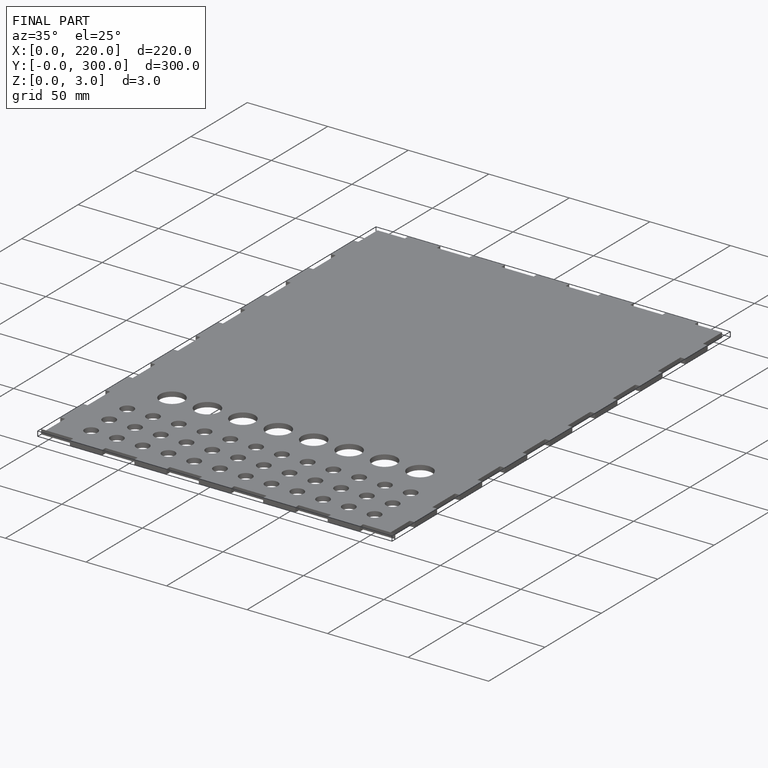
[diagram: finished part — iso view with bounding-box wireframe]
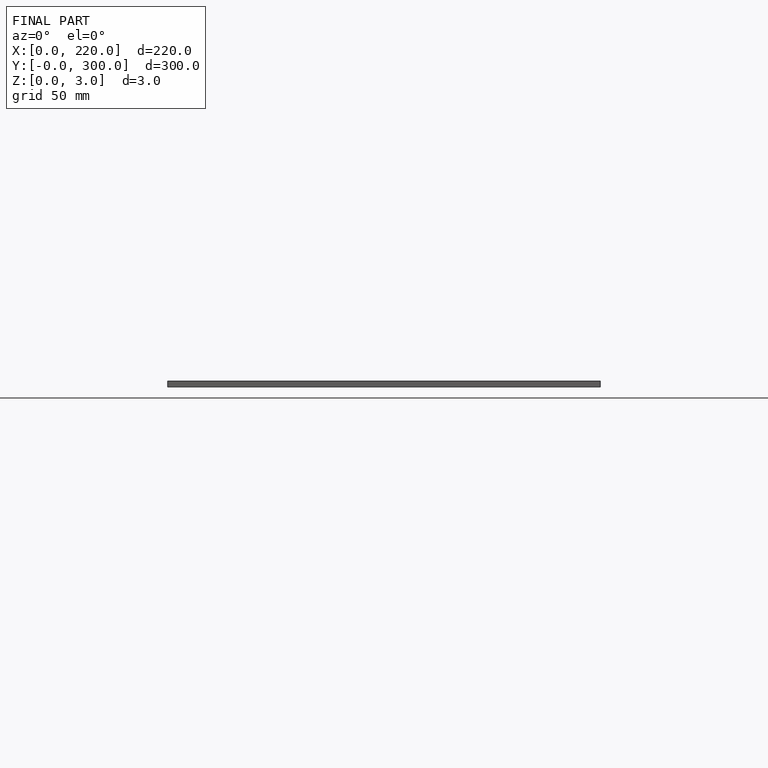
[diagram: finished part — front view with bounding-box wireframe]
